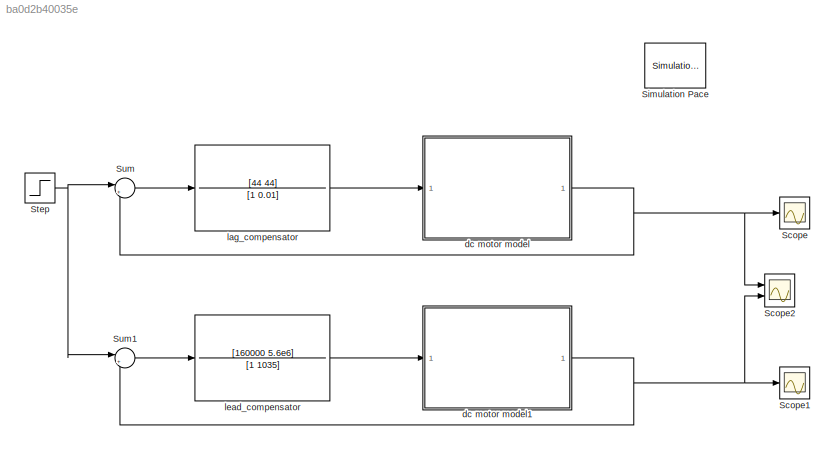
MODEL slx_ba0d2b40035e
KIND model
CONFIG AbsTol = auto
CONFIG EnableMultiTasking = off
CONFIG FixedStep = auto
CONFIG MaxStep = auto
CONFIG MinStep = auto
CONFIG RelTol = 1e-3
CONFIG SampleTimeConstraint = Unconstrained
CONFIG SolverName = VariableStepAuto
CONFIG StartTime = 0.0
CONFIG StopTime = 20
BLOCK [Scope] Scope
  Floating = off
  NumInputPorts = 1
  Ports = [1]
  ScopeSpecificationString = Simulink.scopes.TimeScopeBlockCfg('CurrentConfiguration', extmgr.ConfigurationSet(extmgr.Configuration('Core','General UI',true),extmgr.Configuration('Core','Source UI',true),extmgr.Configuration('Sources','WiredSimulink',true),extmgr.Configuration('Visuals','Time Domain',true,'SerializedDisplays',{struct('MinYLimReal','-0.12806','MaxYLimReal','1.15254','YLabelReal','','MinYLimMag','0.00000','MaxY...<+1360ch>
BLOCK [Scope] Scope1
  Floating = off
  NumInputPorts = 1
  Ports = [1]
  ScopeSpecificationString = Simulink.scopes.TimeScopeBlockCfg('CurrentConfiguration', extmgr.ConfigurationSet(extmgr.Configuration('Core','General UI',true),extmgr.Configuration('Core','Source UI',true),extmgr.Configuration('Sources','WiredSimulink',true,'DataLoggingVariableName','ScopeData1'),extmgr.Configuration('Visuals','Time Domain',true,'SerializedDisplays',{struct('MinYLimReal','-0.13255','MaxYLimReal','1.19291','YLab...<+1400ch>
BLOCK [Scope] Scope2
  Floating = off
  NumInputPorts = 2
  Ports = [2]
  ScopeSpecificationString = Simulink.scopes.TimeScopeBlockCfg('CurrentConfiguration', extmgr.ConfigurationSet(extmgr.Configuration('Core','General UI',true),extmgr.Configuration('Core','Source UI',true),extmgr.Configuration('Sources','WiredSimulink',true,'DataLoggingVariableName','ScopeData2'),extmgr.Configuration('Visuals','Time Domain',true,'SerializedDisplays',{struct('MinYLimReal','-0.13255','MaxYLimReal','1.19291','YLab...<+1525ch>
BLOCK [Reference] Simulation Pace  REF=aerolibanimutils/Simulation Pace
  AttributesFormatString = %<SleepMode>\n%<SimulationPace> sec/sec
  Ports = []
  SourceBlock = aerolibanimutils/Simulation Pace
  SourceProductBaseCode = AE
  SourceType = Simulation Pace
BLOCK [Step] Step
  SampleTime = 0
BLOCK [Sum] Sum
  Inputs = |+-
  Ports = [2, 1]
BLOCK [Sum] Sum1
  Inputs = |+-
  Ports = [2, 1]
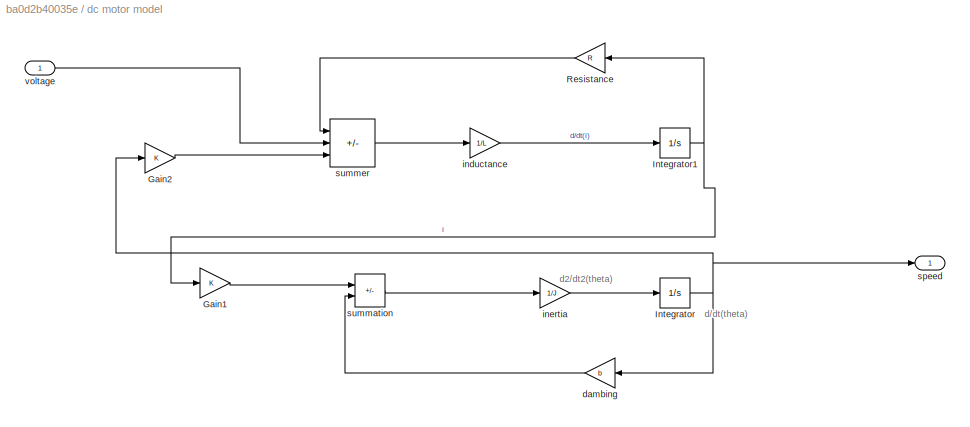
BLOCK [SubSystem] dc motor model
  Ports = [1, 1]
  RequestExecContextInheritance = off
BLOCK [Gain] dc motor model/Gain1
  Gain = K
BLOCK [Gain] dc motor model/Gain2
  Gain = K
BLOCK [Integrator] dc motor model/Integrator
  Ports = [1, 1]
BLOCK [Integrator] dc motor model/Integrator1
  Ports = [1, 1]
BLOCK [Gain] dc motor model/Resistance
  Gain = R
BLOCK [Gain] dc motor model/dambing
  Gain = b
BLOCK [Gain] dc motor model/inductance
  Gain = 1/L
BLOCK [Gain] dc motor model/inertia
  Gain = 1/J
BLOCK [Outport] dc motor model/speed
BLOCK [Sum] dc motor model/summation
  IconShape = rectangular
  Inputs = +-
  Ports = [2, 1]
BLOCK [Sum] dc motor model/summer
  IconShape = rectangular
  Inputs = -+-
  Ports = [3, 1]
BLOCK [Inport] dc motor model/voltage
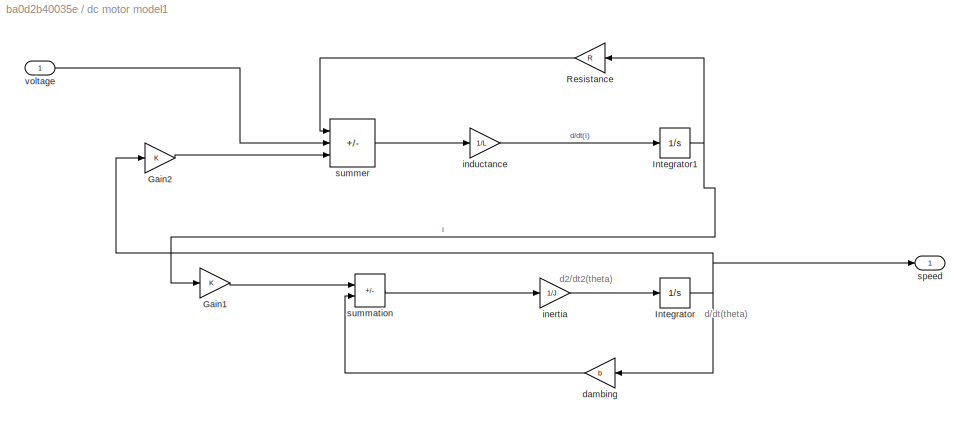
BLOCK [SubSystem] dc motor model1
  Ports = [1, 1]
  RequestExecContextInheritance = off
BLOCK [Gain] dc motor model1/Gain1
  Gain = K
BLOCK [Gain] dc motor model1/Gain2
  Gain = K
BLOCK [Integrator] dc motor model1/Integrator
  Ports = [1, 1]
BLOCK [Integrator] dc motor model1/Integrator1
  Ports = [1, 1]
BLOCK [Gain] dc motor model1/Resistance
  Gain = R
BLOCK [Gain] dc motor model1/dambing
  Gain = b
BLOCK [Gain] dc motor model1/inductance
  Gain = 1/L
BLOCK [Gain] dc motor model1/inertia
  Gain = 1/J
BLOCK [Outport] dc motor model1/speed
BLOCK [Sum] dc motor model1/summation
  IconShape = rectangular
  Inputs = +-
  Ports = [2, 1]
BLOCK [Sum] dc motor model1/summer
  IconShape = rectangular
  Inputs = -+-
  Ports = [3, 1]
BLOCK [Inport] dc motor model1/voltage
BLOCK [TransferFcn] lag_compensator
  Denominator = [1 0.01]
  Numerator = [44 44]
BLOCK [TransferFcn] lead_compensator
  Denominator = [1 1035]
  Numerator = [160000 5.6e6]
ANNOTATION dc motor model: d/dt(theta)
ANNOTATION dc motor model: d2/dt2(theta)
ANNOTATION dc motor model1: d/dt(theta)
ANNOTATION dc motor model1: d2/dt2(theta)
NET Step:1 -> Sum1:1, Sum:1
LINE Sum1:1 -> lead_compensator:1
LINE Sum:1 -> lag_compensator:1
LINE dc motor model/Gain1:1 -> dc motor model/summation:1
LINE dc motor model/Gain2:1 -> dc motor model/summer:3
NET dc motor model/Integrator1:1 -> dc motor model/Gain1:1, dc motor model/Resistance:1
NET dc motor model/Integrator:1 -> dc motor model/Gain2:1, dc motor model/dambing:1, dc motor model/speed:1
LINE dc motor model/Resistance:1 -> dc motor model/summer:1
LINE dc motor model/dambing:1 -> dc motor model/summation:2
LINE dc motor model/inductance:1 -> dc motor model/Integrator1:1
LINE dc motor model/inertia:1 -> dc motor model/Integrator:1
LINE dc motor model/summation:1 -> dc motor model/inertia:1
LINE dc motor model/summer:1 -> dc motor model/inductance:1
LINE dc motor model/voltage:1 -> dc motor model/summer:2
LINE dc motor model1/Gain1:1 -> dc motor model1/summation:1
LINE dc motor model1/Gain2:1 -> dc motor model1/summer:3
NET dc motor model1/Integrator1:1 -> dc motor model1/Gain1:1, dc motor model1/Resistance:1
NET dc motor model1/Integrator:1 -> dc motor model1/Gain2:1, dc motor model1/dambing:1, dc motor model1/speed:1
LINE dc motor model1/Resistance:1 -> dc motor model1/summer:1
LINE dc motor model1/dambing:1 -> dc motor model1/summation:2
LINE dc motor model1/inductance:1 -> dc motor model1/Integrator1:1
LINE dc motor model1/inertia:1 -> dc motor model1/Integrator:1
LINE dc motor model1/summation:1 -> dc motor model1/inertia:1
LINE dc motor model1/summer:1 -> dc motor model1/inductance:1
LINE dc motor model1/voltage:1 -> dc motor model1/summer:2
NET dc motor model1:1 -> Scope1:1, Scope2:2, Sum1:2
NET dc motor model:1 -> Scope2:1, Scope:1, Sum:2
LINE lag_compensator:1 -> dc motor model:1
LINE lead_compensator:1 -> dc motor model1:1
note: NET lines group one-source signal fan-out (src -> all destinations, sorted); 1:1 wires keep LINE
